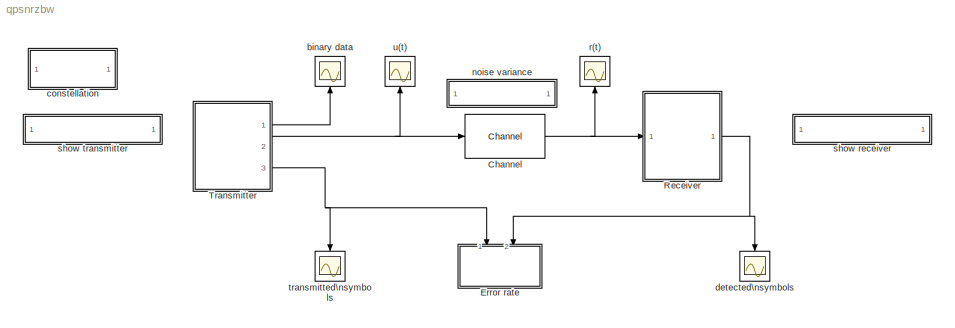
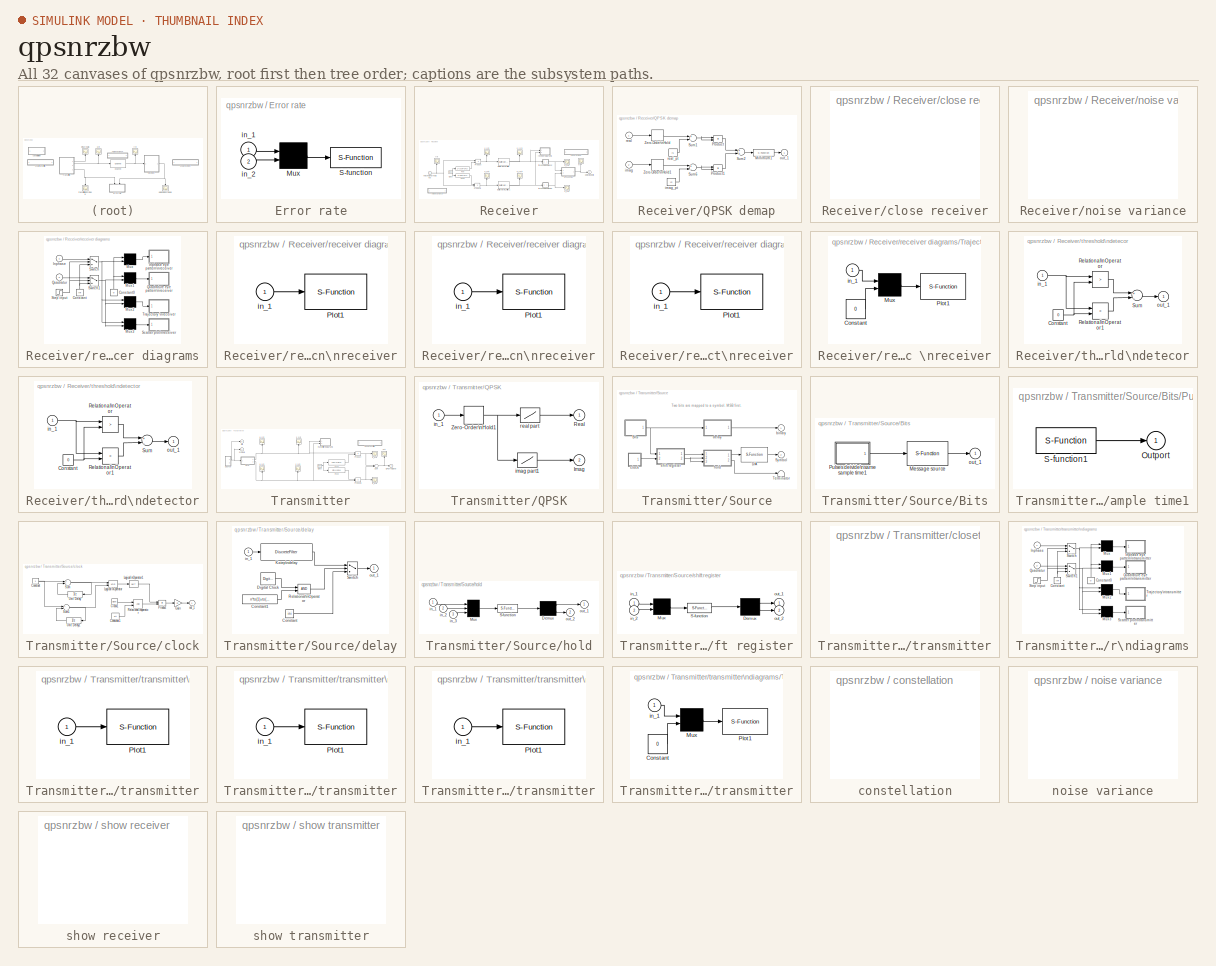
[diagram: thumbnail index - all 32 canvases of the model, root first then tree order]
MODEL qpsnrzbw
KIND model
CONFIG AbsTol = 1e-6
CONFIG FixedStep = auto
CONFIG MaxStep = .050
CONFIG MinStep = 0.00001
CONFIG RelTol = 1e-6
CONFIG Solver = ode45
CONFIG SolverMode = Auto
CONFIG StartTime = 0.0
CONFIG StopTime = 999999
BLOCK [Reference] Channel  REF=librnew/Channel  (lib defined in mdl_aba7bc8d2a37)
  Ports = [1, 1]
  SourceBlock = librnew/Channel
  SourceType = AWGN channel, fixed parameter
  m = 0
  s = 12345
  variance = 0.033113
BLOCK [SubSystem] Error rate
  CopyFcn = sbiterr([],[],[],'CopyBlock')
  DeleteFcn = sbiterr([],[],[],'DeleteBlock')
  LoadFcn = sbiterr([],[],[],'LoadBlock')
  MaskCallbackString = |||
  MaskDescription = Use the input data from the 1st port as the reference signal to detect the number of errors and error rate of the 2nd signal.
  MaskDisplay = disp('Error\\nmeter')
  MaskEnableString = on,on,on,on
  MaskHelp = The signal from the first port must be a scalar. The second input port can be a vector with a delay to the first port signal. The comparison happens only at the sampling point.
  MaskIconFrame = on
  MaskIconOpaque = on
  MaskIconRotate = none
  MaskIconUnits = autoscale
  MaskInitialization = K=@1;num_lin=@2;TDelay=@3;Sample=@4;
  MaskPromptString = Bit per symbol:|Number of digits on display:|Delay between 1st port and 2nd port:|Sample time (sec):
  MaskStyleString = edit,edit,edit,edit
  MaskToolTipString = on,on,on,on
  MaskTunableValueString = on,on,on,on
  MaskType = Symbol/bit error counter
  MaskValueString = 2|10|1|1
  MaskVarAliasString = ,,,
  MaskVisibilityString = on,on,on,on
  NameChangeFcn = sbiterr([],[],[],'NameChange')
  Ports = [2]
  ShowPortLabels = off
  StartFcn = sbiterr([],[],[],'Start')
  StopFcn = sbiterr([],[],[],'Stop')
  TreatAsAtomicUnit = off
BLOCK [Mux] Error rate/Mux
  Inputs = 2
  Ports = [2, 1]
BLOCK [S-Function] Error rate/S-function
  FunctionName = sbiterr
  Parameters = num_lin, K, TDelay, Sample
  Ports = [1]
BLOCK [Inport] Error rate/in_1
BLOCK [Inport] Error rate/in_2
  Port = 2
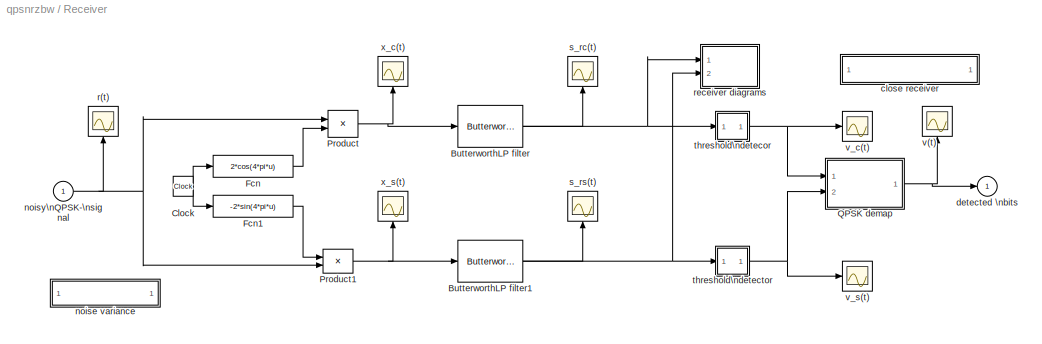
BLOCK [SubSystem] Receiver
  Ports = [1, 1]
  ShowPortLabels = off
  TreatAsAtomicUnit = off
BLOCK [Reference] Receiver/ButterworthLP filter  REF=librnew/ButterworthLP filter  (lib defined in mdl_aba7bc8d2a37)
  MaskParam1 = 5
  Ports = [1, 1]
  SourceBlock = librnew/ButterworthLP filter
  SourceType = Lowpass Butterworth filter
  n = 4
BLOCK [Reference] Receiver/ButterworthLP filter1  REF=librnew/ButterworthLP filter  (lib defined in mdl_aba7bc8d2a37)
  MaskParam1 = 5
  Ports = [1, 1]
  SourceBlock = librnew/ButterworthLP filter
  SourceType = Lowpass Butterworth filter
  n = 4
BLOCK [Clock] Receiver/Clock
  Decimation = 10
BLOCK [Fcn] Receiver/Fcn
  Expr = 2*cos(4*pi*u)
BLOCK [Fcn] Receiver/Fcn1
  Expr = -2*sin(4*pi*u)
BLOCK [Product] Receiver/Product
  Ports = [2, 1]
BLOCK [Product] Receiver/Product1
  Ports = [2, 1]
BLOCK [SubSystem] Receiver/QPSK demap
  MaskCallbackString = |||
  MaskDescription = Reverse the QASK map. Input in-phase\nand quadrature components from the\ntwo inputs. Output demapped signal.
  MaskDisplay = disp('MPSK\\ndemapping')
  MaskEnableString = on,on,on,on
  MaskHelp = This block demaps a QASK mapped signal using circle constellation. You can place this block after a QAM demodulation block. The circle constellation is defined in NIC, RIC, and PIC. The symbol interval can be a two elements vector with the first element being offset. The default offset is zero. Use function MODMAP to view the constellation.
  MaskIconFrame = on
  MaskIconOpaque = on
  MaskIconRotate = none
  MaskIconUnits = autoscale
  MaskInitialization = y1=apkconst(N,A,P);y2=imag(y1);y1=real(y1);
  MaskPromptString = Number of symbols on each circle NIC::|Radii for each circle RIC:|Phase shift on each circle PIC (rad):|Symbol interval and offset (sec):
  MaskStyleString = edit,edit,edit,edit
  MaskToolTipString = on,on,on,on
  MaskTunableValueString = on,on,on,on
  MaskType = MPSK demapping
  MaskValueString = [4]|[sqrt(2)]|[pi/4]|1
  MaskVarAliasString = ,,,
  MaskVariables = N=@1;A=@2;P=@3;td=@4;
  MaskVisibilityString = on,on,on,on
  Ports = [2, 1]
  TreatAsAtomicUnit = off
BLOCK [S-Function] Receiver/QPSK demap/Minimum1
  FunctionName = arymimai
  Parameters = 'min'
  Ports = [1, 1]
BLOCK [Product] Receiver/QPSK demap/Product
  Ports = [2, 1]
BLOCK [Product] Receiver/QPSK demap/Product1
  Ports = [2, 1]
BLOCK [Sum] Receiver/QPSK demap/Sum1
  Inputs = +-
  Ports = [2, 1]
BLOCK [Sum] Receiver/QPSK demap/Sum2
  Ports = [2, 1]
BLOCK [Sum] Receiver/QPSK demap/Sum6
  Inputs = +-
  Ports = [2, 1]
BLOCK [ZeroOrderHold] Receiver/QPSK demap/Zero-Order\nHold
  SampleTime = td
BLOCK [ZeroOrderHold] Receiver/QPSK demap/Zero-Order\nHold1
  SampleTime = td
BLOCK [Inport] Receiver/QPSK demap/imag
  Port = 2
BLOCK [Constant] Receiver/QPSK demap/imag_pt
  Value = y2
BLOCK [Outport] Receiver/QPSK demap/out_1
BLOCK [Inport] Receiver/QPSK demap/real
BLOCK [Constant] Receiver/QPSK demap/real_pt
  Value = y1
BLOCK [SubSystem] Receiver/close receiver
  MaskDisplay = disp('close receiver')
  MaskIconFrame = on
  MaskIconOpaque = on
  MaskIconRotate = none
  MaskIconUnits = autoscale
  MaskType = close
  OpenFcn = closerec
  Ports = []
  ShowPortLabels = off
  TreatAsAtomicUnit = off
BLOCK [Outport] Receiver/detected \nbits
BLOCK [SubSystem] Receiver/noise variance
  MaskDisplay = disp('Noise variance')
  MaskIconFrame = on
  MaskIconOpaque = on
  MaskIconRotate = none
  MaskIconUnits = autoscale
  MaskType = noise
  OpenFcn = setnoise
  Ports = []
  ShowPortLabels = off
  TreatAsAtomicUnit = off
BLOCK [Inport] Receiver/noisy\nQPSK-\nsignal
BLOCK [Scope] Receiver/r(t)
  DataFormat = Array
  NumInputPorts = 1
  Ports = [1]
  TimeRange = 25.000000
  YMax = 1.5
  YMin = -1.5
BLOCK [SubSystem] Receiver/receiver diagrams
  MaskCallbackString = ||
  MaskDescription = Eye pattern, signal space trajectory and scatter plot
  MaskDisplay = plot(0,0,100,100,x,y)
  MaskEnableString = on,on,on
  MaskIconFrame = on
  MaskIconOpaque = on
  MaskIconRotate = none
  MaskIconUnits = autoscale
  MaskInitialization = [x, y] = srcsicon(10);
  MaskPromptString = Plot start time:|Samples per time slot (2*T):|Decision offset:
  MaskStyleString = edit,edit,edit
  MaskToolTipString = on,on,on
  MaskTunableValueString = on,on,on
  MaskType = 2D-Diagrams
  MaskValueString = 1|40|0.075
  MaskVarAliasString = ,,
  MaskVariables = starttime=@1;anzahl=@2;offset=@3;
  MaskVisibilityString = on,on,on
  Ports = [2]
  ShowPortLabels = off
  TreatAsAtomicUnit = off
BLOCK [Constant] Receiver/receiver diagrams/Constant
  Value = Inf
BLOCK [Constant] Receiver/receiver diagrams/Constant0
  Value = 0
BLOCK [Inport] Receiver/receiver diagrams/Inphase
BLOCK [SubSystem] Receiver/receiver diagrams/Inphase eye pattern\nreceiver
  CopyFcn = eyesampl([],[],[],'CopyBlock')
  DeleteFcn = eyesampl([],[],[],'DeleteBlock')
  LoadFcn = eyesampl([],[],[],'LoadBlock')
  MaskCallbackString = |||||
  MaskDescription = Produce eye-pattern diagram and/or scatter plot.
  MaskDisplay = plot(0,0,100,100,x,y);
  MaskEnableString = on,on,on,on,on,on
  MaskHelp = This plot opens one, or two plots by assigning the line type parameters. The scatter plot point is selected by the decision point in the first parameter entry. A decision line is drawn in the eye-pattern diagram. The plot is updated at the plot update sample time point.  <repeated x6 — deduplicated; at blocks: Inphase eye pattern\nreceiver, Quadrature eye pattern\nreceiver, Scatter plot\nreceiver, Inphase eye pattern\ntransmitter, Quadrature eye pattern\ntransmitter, Scatter plot\ntransmitter>
  MaskIconFrame = on
  MaskIconOpaque = on
  MaskIconRotate = none
  MaskIconUnits = autoscale
  MaskInitialization = time_range=@1;boundary=@2;kept_length=@3;eye_line=@4;scatter_line=@5;two_d_line=@6;[x,y]=srcsicon(10);
  MaskPromptString = [Symbol interval, plot offset, decision point offset]:|Lower and upper bound of in-coming signal (1x2 vector):|Number of saved traces:|Line-type for eye-pattern diagram (0 for no plot):|Line-type for scatter plot (0 for no plot):|Plot update sample time:  <repeated x6 — deduplicated; at blocks: Inphase eye pattern\nreceiver, Quadrature eye pattern\nreceiver, Scatter plot\nreceiver, Inphase eye pattern\ntransmitter, Quadrature eye pattern\ntransmitter, Scatter plot\ntransmitter>
  MaskStyleString = edit,edit,edit,edit,edit,edit
  MaskToolTipString = on,on,on,on,on,on
  MaskTunableValueString = on,on,on,on,on,on
  MaskType = Eye-diagram/scatter plot
  MaskValueString = [2 0 1+offset]|[-1.5 1.5]|0|'w-/r-'|0|2/anzahl
  MaskVarAliasString = ,,,,,
  MaskVisibilityString = on,on,on,on,on,on
  NameChangeFcn = eyesampl([],[],[],'NameChange')
  Ports = [1]
  ShowPortLabels = off
  StartFcn = eyesampl([],[],[],'Start')
  StopFcn = eyesampl([],[],[],'Stop')
  TreatAsAtomicUnit = off
BLOCK [S-Function] Receiver/receiver diagrams/Inphase eye pattern\nreceiver/Plot1
  FunctionName = eyesampl
  Parameters = time_range, boundary, kept_length, eye_line, scatter_line, two_d_line
  Ports = [1]
BLOCK [Inport] Receiver/receiver diagrams/Inphase eye pattern\nreceiver/in_1
BLOCK [Mux] Receiver/receiver diagrams/Mux
  Inputs = 2
  Ports = [2, 1]
BLOCK [Mux] Receiver/receiver diagrams/Mux1
  Inputs = 2
  Ports = [2, 1]
BLOCK [Mux] Receiver/receiver diagrams/Mux2
  Inputs = 2
  Ports = [2, 1]
BLOCK [Mux] Receiver/receiver diagrams/Mux3
  Inputs = 2
  Ports = [2, 1]
BLOCK [Inport] Receiver/receiver diagrams/Quadratur
  Port = 2
BLOCK [SubSystem] Receiver/receiver diagrams/Quadrature eye pattern\nreceiver
  CopyFcn = eyesampl([],[],[],'CopyBlock')
  DeleteFcn = eyesampl([],[],[],'DeleteBlock')
  LoadFcn = eyesampl([],[],[],'LoadBlock')
  MaskCallbackString = |||||
  MaskDescription = Produce eye-pattern diagram and/or scatter plot.
  MaskDisplay = plot(0,0,100,100,x,y);
  MaskEnableString = on,on,on,on,on,on
  MaskIconFrame = on
  MaskIconOpaque = on
  MaskIconRotate = none
  MaskIconUnits = autoscale
  MaskInitialization = time_range=@1;boundary=@2;kept_length=@3;eye_line=@4;scatter_line=@5;two_d_line=@6;[x,y]=srcsicon(10);
  MaskStyleString = edit,edit,edit,edit,edit,edit
  MaskToolTipString = on,on,on,on,on,on
  MaskTunableValueString = on,on,on,on,on,on
  MaskType = Eye-diagram/scatter plot
  MaskValueString = [2 0 1+offset]|[-1.5 1.5]|0|'w-/r-'|0|2/anzahl
  MaskVarAliasString = ,,,,,
  MaskVisibilityString = on,on,on,on,on,on
  NameChangeFcn = eyesampl([],[],[],'NameChange')
  Ports = [1]
  ShowPortLabels = off
  StartFcn = eyesampl([],[],[],'Start')
  StopFcn = eyesampl([],[],[],'Stop')
  TreatAsAtomicUnit = off
BLOCK [S-Function] Receiver/receiver diagrams/Quadrature eye pattern\nreceiver/Plot1
  FunctionName = eyesampl
  Parameters = time_range, boundary, kept_length, eye_line, scatter_line, two_d_line
  Ports = [1]
BLOCK [Inport] Receiver/receiver diagrams/Quadrature eye pattern\nreceiver/in_1
BLOCK [SubSystem] Receiver/receiver diagrams/Scatter plot\nreceiver
  CopyFcn = eyesampl([],[],[],'CopyBlock')
  DeleteFcn = eyesampl([],[],[],'DeleteBlock')
  LoadFcn = eyesampl([],[],[],'LoadBlock')
  MaskCallbackString = |||||
  MaskDescription = Produce eye-pattern diagram and/or scatter plot.
  MaskDisplay = plot(0,0,100,100,x,y);
  MaskEnableString = on,on,on,on,on,on
  MaskIconFrame = on
  MaskIconOpaque = on
  MaskIconRotate = none
  MaskIconUnits = autoscale
  MaskInitialization = time_range=@1;boundary=@2;kept_length=@3;eye_line=@4;scatter_line=@5;two_d_line=@6;[x,y]=srcsicon(10);
  MaskStyleString = edit,edit,edit,edit,edit,edit
  MaskToolTipString = on,on,on,on,on,on
  MaskTunableValueString = on,on,on,on,on,on
  MaskType = Eye-diagram/scatter plot
  MaskValueString = [1 .5 .999]|[-1.5 1.5]|0|0|'b.'|[.5 offset]
  MaskVarAliasString = ,,,,,
  MaskVisibilityString = on,on,on,on,on,on
  NameChangeFcn = eyesampl([],[],[],'NameChange')
  Ports = [1]
  ShowPortLabels = off
  StartFcn = eyesampl([],[],[],'Start')
  StopFcn = eyesampl([],[],[],'Stop')
  TreatAsAtomicUnit = off
BLOCK [S-Function] Receiver/receiver diagrams/Scatter plot\nreceiver/Plot1
  FunctionName = eyesampl
  Parameters = time_range, boundary, kept_length, eye_line, scatter_line, two_d_line
  Ports = [1]
BLOCK [Inport] Receiver/receiver diagrams/Scatter plot\nreceiver/in_1
BLOCK [Step] Receiver/receiver diagrams/Step input
  SampleTime = 1
  Time = starttime
BLOCK [Switch] Receiver/receiver diagrams/Switch
  Threshold = 1
BLOCK [Switch] Receiver/receiver diagrams/Switch1
  Threshold = 1
BLOCK [SubSystem] Receiver/receiver diagrams/Trajectory \nreceiver
  CopyFcn = eyediasi([],[],[],'CopyBlock')
  DeleteFcn = eyediasi([],[],[],'DeleteBlock')
  LoadFcn = eyediasi([],[],[],'LoadBlock')
  MaskCallbackString = |||||
  MaskDescription = Produce eye-pattern diagram/scatter\nplot/x-y plot with the rising edge of the second input as the decision line.
  MaskDisplay = plot(0,0,100,100,x,y,v,w);
  MaskEnableString = on,on,on,on,on,on
  MaskHelp = This plot opens one, two, or three plots by assigning the line type parameters. The scatter plot point is selected by the rising edge of a trigger signal. A decision line is drawn at the rising edge of the trigger signal.
  MaskIconFrame = on
  MaskIconOpaque = on
  MaskIconRotate = none
  MaskIconUnits = autoscale
  MaskInitialization = time_range=@1;boundary=@2;kept_length=@3;eye_line=@4;scatter_line=@5;two_d_line=@6;[x,y]=srcsicon(10);[v,w]=trigicon(0,25,get_param(gcb,'orientation'),2);
  MaskPromptString = Eye-pattern plot time frame:|Lower and upper bound of in-coming signal (1x2 vector):|Number of saved traces:|Line-type for eye-pattern diagram (0 for no plot):|Line-type for scatter plot (0 for no plot):|Line-type for x-y plot (0 for no plot):
  MaskStyleString = edit,edit,edit,edit,edit,edit
  MaskToolTipString = on,on,on,on,on,on
  MaskTunableValueString = on,on,on,on,on,on
  MaskType = Eye-diagram/scatter plot
  MaskValueString = [2 0 1]|[-1.5 1.5]|0|0|0|'g-'
  MaskVarAliasString = ,,,,,
  MaskVisibilityString = on,on,on,on,on,on
  NameChangeFcn = eyediasi([],[],[],'NameChange')
  Ports = [1]
  ShowPortLabels = off
  StartFcn = eyediasi([],[],[],'Start')
  StopFcn = eyediasi([],[],[],'Stop')
  TreatAsAtomicUnit = off
BLOCK [Constant] Receiver/receiver diagrams/Trajectory \nreceiver/Constant
  Value = 0
BLOCK [Mux] Receiver/receiver diagrams/Trajectory \nreceiver/Mux
  Inputs = 2
  Ports = [2, 1]
BLOCK [S-Function] Receiver/receiver diagrams/Trajectory \nreceiver/Plot1
  FunctionName = eyediasi
  Parameters = time_range, boundary, kept_length, eye_line, scatter_line, two_d_line
  Ports = [1]
BLOCK [Inport] Receiver/receiver diagrams/Trajectory \nreceiver/in_1
BLOCK [Scope] Receiver/s_rc(t)
  DataFormat = Array
  NumInputPorts = 1
  Ports = [1]
  TimeRange = 25.000000
  YMax = 1.5
  YMin = -1.5
BLOCK [Scope] Receiver/s_rs(t)
  DataFormat = Array
  NumInputPorts = 1
  Ports = [1]
  TimeRange = 25.000000
  YMax = 1.5
  YMin = -1.5
BLOCK [SubSystem] Receiver/threshold\ndetecor
  MaskDescription = y = sign(x)
  MaskDisplay = plot(-50,-50,50,50,[-50,50],[0,0],[0,0],[-50,50],[-40,0],[-30,-30],[0,40],[30,30])
  MaskHelp = Sign Function:<path> = 1 if x > 0<path> = 0 if x = 0<path> = -1 if x < 0
  MaskIconFrame = on
  MaskIconOpaque = on
  MaskIconRotate = none
  MaskIconUnits = autoscale
  MaskType = Sign
  Ports = [1, 1]
  ShowPortLabels = off
  TreatAsAtomicUnit = off
BLOCK [Constant] Receiver/threshold\ndetecor/Constant
  Value = 0
BLOCK [RelationalOperator] Receiver/threshold\ndetecor/Relational\nOperator
  Operator = >
BLOCK [RelationalOperator] Receiver/threshold\ndetecor/Relational\nOperator1
  Operator = <
BLOCK [Sum] Receiver/threshold\ndetecor/Sum
  Inputs = +-
  Ports = [2, 1]
BLOCK [Inport] Receiver/threshold\ndetecor/in_1
BLOCK [Outport] Receiver/threshold\ndetecor/out_1
BLOCK [SubSystem] Receiver/threshold\ndetector
  MaskDescription = y = sign(x)
  MaskDisplay = plot(-50,-50,50,50,[-50,50],[0,0],[0,0],[-50,50],[-40,0],[-30,-30],[0,40],[30,30])
  MaskHelp = Sign Function:<path> = 1 if x > 0<path> = 0 if x = 0<path> = -1 if x < 0
  MaskIconFrame = on
  MaskIconOpaque = on
  MaskIconRotate = none
  MaskIconUnits = autoscale
  MaskType = Sign
  Ports = [1, 1]
  ShowPortLabels = off
  TreatAsAtomicUnit = off
BLOCK [Constant] Receiver/threshold\ndetector/Constant
  Value = 0
BLOCK [RelationalOperator] Receiver/threshold\ndetector/Relational\nOperator
  Operator = >
BLOCK [RelationalOperator] Receiver/threshold\ndetector/Relational\nOperator1
  Operator = <
BLOCK [Sum] Receiver/threshold\ndetector/Sum
  Inputs = +-
  Ports = [2, 1]
BLOCK [Inport] Receiver/threshold\ndetector/in_1
BLOCK [Outport] Receiver/threshold\ndetector/out_1
BLOCK [Scope] Receiver/v(t)
  DataFormat = Array
  NumInputPorts = 1
  Ports = [1]
  TimeRange = 25.000000
  YMax = 3.000000
  YMin = -3.000000
BLOCK [Scope] Receiver/v_c(t)
  DataFormat = Array
  NumInputPorts = 1
  Ports = [1]
  TimeRange = 25.000000
  YMax = 1.5
  YMin = -1.5
BLOCK [Scope] Receiver/v_s(t)
  DataFormat = Array
  NumInputPorts = 1
  Ports = [1]
  TimeRange = 25.000000
  YMax = 1.5
  YMin = -1.5
BLOCK [Scope] Receiver/x_c(t)
  DataFormat = Array
  NumInputPorts = 1
  Ports = [1]
  TimeRange = 25.000000
  YMax = 1.5
  YMin = -1.5
BLOCK [Scope] Receiver/x_s(t)
  DataFormat = Array
  NumInputPorts = 1
  Ports = [1]
  TimeRange = 25.000000
  YMax = 1.5
  YMin = -1.5
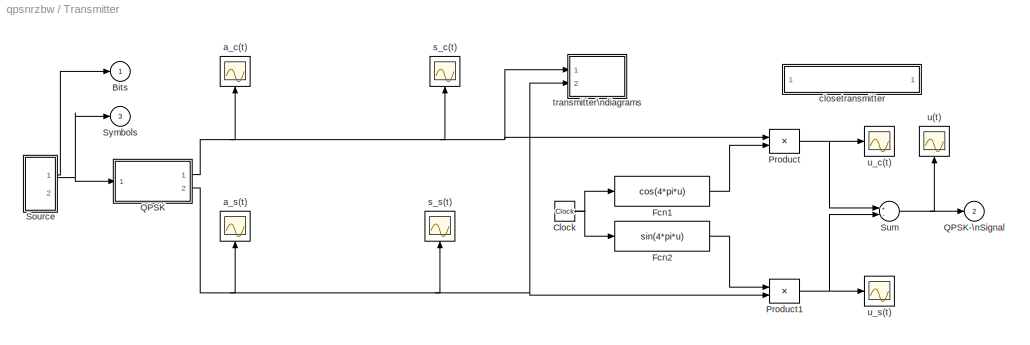
BLOCK [SubSystem] Transmitter
  Ports = [0, 3]
  ShowPortLabels = off
  TreatAsAtomicUnit = off
BLOCK [Outport] Transmitter/Bits
BLOCK [Clock] Transmitter/Clock
  Decimation = 10
BLOCK [Fcn] Transmitter/Fcn1
  Expr = cos(4*pi*u)
BLOCK [Fcn] Transmitter/Fcn2
  Expr = sin(4*pi*u)
BLOCK [Product] Transmitter/Product
  Ports = [2, 1]
BLOCK [Product] Transmitter/Product1
  Ports = [2, 1]
BLOCK [SubSystem] Transmitter/QPSK
  MaskCallbackString = |||
  MaskDescription = QASK mapping with circle constellation. The constellation is defined in NIC, RIC and PIC.
  MaskDisplay = disp('MPSK\\nmapping')
  MaskEnableString = on,on,on,on
  MaskHelp = This block maps a digital signal onto in-phase and quadratic components, which are outputs in the first and second output port respectively. The circle constellation is defined in NIC, RIC, and PIC. The input symbol interval can be a two-element vector with the second element being offset. The default value offset is 0. Use the MODMAP function to see the constellation.
  MaskIconFrame = on
  MaskIconOpaque = on
  MaskIconRotate = none
  MaskIconUnits = autoscale
  MaskInitialization = y1=apkconst(N,A,P);y1=[y1;y1];y1=y1(:);y2=imag(y1);y1=real(y1);x=[-sum(N) 1:sum(N)-1;1:sum(N)-1 10*sum(N)]-.5;x=x(:);
  MaskPromptString = Number of symbols in each circle NIC:|Radii in each circle RIC:|Phase shift in each circle PIC (rad):|Symbol interval and offset (sec):
  MaskStyleString = edit,edit,edit,edit
  MaskToolTipString = on,on,on,on
  MaskTunableValueString = on,on,on,on
  MaskType = MPSK
  MaskValueString = [4]|[sqrt(2)]|[pi/4]|1
  MaskVarAliasString = ,,,
  MaskVariables = N=@1;A=@2;P=@3;td=@4;
  MaskVisibilityString = on,on,on,on
  Ports = [1, 2]
  TreatAsAtomicUnit = off
BLOCK [Outport] Transmitter/QPSK-\nSignal
  Port = 2
BLOCK [Outport] Transmitter/QPSK/Imag
  Port = 2
BLOCK [Outport] Transmitter/QPSK/Real
BLOCK [ZeroOrderHold] Transmitter/QPSK/Zero-Order\nHold1
  SampleTime = td
BLOCK [Lookup] Transmitter/QPSK/imag part1
  InputValues = x
  OutputValues = y2
BLOCK [Inport] Transmitter/QPSK/in_1
BLOCK [Lookup] Transmitter/QPSK/real part
  InputValues = x
  OutputValues = y1
BLOCK [SubSystem] Transmitter/Source
  Ports = [0, 2]
  ShowPortLabels = off
  TreatAsAtomicUnit = off
BLOCK [SubSystem] Transmitter/Source/Bits
  MaskCallbackString = |||
  MaskDescription = Read from a workspace variable at\nsampling time point.
  MaskDisplay = plot(0,0,100,100,x,y);disp('Rd wksp')
  MaskEnableString = on,on,on,on
  MaskHelp = This block reads from a workspace variable at a given sample time. The column number is the block output vector length. When the simulation reaches the end of the variable (eof), the block will cyclically output from the first row of the variable or output zeros based on the repeat flag entree.
  MaskIconFrame = on
  MaskIconOpaque = on
  MaskIconRotate = none
  MaskIconUnits = autoscale
  MaskInitialization = var=@1;td=@2;ts=td(1);if (length(td)>=2),off=td(2);else off=0;end;cyc=@3;ini=@4;[x,y]=srcsicon(7);
  MaskPromptString = Variable (column_number=block_output_length):|Data output sample time (sec):|Repeat flag (1: repeat read, 0: output zeros after eof).|Initial output:
  MaskStyleString = edit,edit,edit,edit
  MaskToolTipString = on,on,on,on
  MaskTunableValueString = on,on,on,on
  MaskType = Read from workspace
  MaskValueString = randint(2000,1,2)|.5|1|1
  MaskVarAliasString = ,,,
  MaskVisibilityString = on,on,on,on
  Ports = [0, 1]
  ShowPortLabels = off
  TreatAsAtomicUnit = off
BLOCK [S-Function] Transmitter/Source/Bits/Message source
  FunctionName = trigwksp
  MaskCallbackString = |||
  MaskDescription = The raising edge of input pulse trigger the block output the next row from the workspace variable.
  MaskDisplay = disp('Triggered\\nread')
  MaskEnableString = on,on,on,on
  MaskHelp = This block reads the data from a workspace variable. The output is refreshed at the raising edge of the input pulse.
  MaskIconFrame = on
  MaskIconOpaque = on
  MaskIconRotate = none
  MaskIconUnits = autoscale
  MaskInitialization = var=@1;thd=@2;cyclFlag=@3;ini=@4;
  MaskPromptString = Read the variable:|Threshold for the input pulse:|Cyclic read variable (1) or amend zeros (0).|Output before first trigger:
  MaskStyleString = edit,edit,edit,edit
  MaskToolTipString = on,on,on,on
  MaskTunableValueString = on,on,on,on
  MaskType = Read from workspace
  MaskValueString = var|.1|cyc|ini
  MaskVarAliasString = ,,,
  MaskVisibilityString = on,on,on,on
  Parameters = var,thd,cyclFlag,ini
  Ports = [1, 1]
BLOCK [SubSystem] Transmitter/Source/Bits/Pulses deivide\nsame sample time1
  MaskCallbackString = ||
  MaskDescription = Vector pulses with sample rate of each pulse as Sample_time ./Divider.
  MaskDisplay = disp('Vector\\nPulse')
  MaskEnableString = on,on,on
  MaskHelp = This block generator a vector pulses. The output length is the same as the vector defined in \"Divider\". The ith element of the output has the sample time Sample_time/Divider(i). All elements in \"Divider\" must be integers.
  MaskIconFrame = on
  MaskIconOpaque = on
  MaskIconRotate = none
  MaskIconUnits = autoscale
  MaskInitialization = samp_time=@1;out_divid=@2;offset=@3;
  MaskPromptString = Sample time (scalar, sec):|Divider (integer vector):|Offset (have same dimension as Divider:
  MaskStyleString = edit,edit,edit
  MaskToolTipString = on,on,on
  MaskTunableValueString = on,on,on
  MaskType = Pulse generator
  MaskValueString = ts|1|off
  MaskVarAliasString = ,,
  MaskVisibilityString = on,on,on
  Ports = [0, 1]
  ShowPortLabels = off
  TreatAsAtomicUnit = off
BLOCK [Outport] Transmitter/Source/Bits/Pulses deivide\nsame sample time1/Outport
BLOCK [S-Function] Transmitter/Source/Bits/Pulses deivide\nsame sample time1/S-function1
  FunctionName = homopuls
  Parameters = samp_time, out_divid, offset
  Ports = [0, 1]
BLOCK [Outport] Transmitter/Source/Bits/out_1
BLOCK [S-Function] Transmitter/Source/D//A 
  FunctionName = simbi2de
  MaskDescription = Convert base M integer with each\nposition in the input vector into scalar decimal output.
  MaskDisplay = disp('Vec to sca\\nconverter')
  MaskEnableString = on
  MaskHelp = This block convert the base M vector into scalar decimal integer output. Each element of the input vector is one position of the digit of the base M integer. The 1st element in the input vector contains the 1's position. The 2nd element in the input vector contains the M's position.
  MaskIconFrame = on
  MaskIconOpaque = on
  MaskIconRotate = none
  MaskIconUnits = autoscale
  MaskInitialization = p=@1;
  MaskPromptString = Input integer base M:
  MaskStyleString = edit
  MaskToolTipString = on
  MaskTunableValueString = on
  MaskType = Base M vector to decimal integer
  MaskValueString = 2
  MaskVisibilityString = on
  Parameters = p
  Ports = [1, 1]
BLOCK [Outport] Transmitter/Source/Symbol
  Port = 2
BLOCK [Terminator] Transmitter/Source/Terminator
BLOCK [Outport] Transmitter/Source/binary
BLOCK [SubSystem] Transmitter/Source/clock
  MaskCallbackString = |||
  MaskDescription = Pulse Generator.
  MaskDisplay = plot(0,0,100,100,[90,75,75,60,60,35,35,20,20,10],[20,20,80,80,20,20,80,80,20,20])
  MaskEnableString = on,on,on,on
  MaskHelp = Pulse generator which ensures pulse\\ntransitions are hit. Provides a vector of pulses when the height is entered as a vector.\\nUnmask to see how it works.
  MaskIconFrame = on
  MaskIconOpaque = on
  MaskIconRotate = none
  MaskIconUnits = autoscale
  MaskInitialization = Ts=@1; du=@2; ht=@3; stt=@4; ini=ones(length(ht),1); st1=rem(stt,Ts); st2=rem(stt+du,Ts);if(Ts<=1.2*du),ini=zeros(length(ht),1);end;
  MaskPromptString = Pulse period (secs):|Pulse width:|Pulse height:|Pulse start time:
  MaskStyleString = edit,edit,edit,edit
  MaskToolTipString = on,on,on,on
  MaskTunableValueString = on,on,on,on
  MaskType = Pulse Generator
  MaskValueString = .5|.25|1|0
  MaskVarAliasString = ,,,
  MaskVisibilityString = on,on,on,on
  Ports = [0, 1]
  ShowPortLabels = off
  TreatAsAtomicUnit = off
BLOCK [Clock] Transmitter/Source/clock/Clock1
  Decimation = 10
BLOCK [Constant] Transmitter/Source/clock/Constant
BLOCK [Constant] Transmitter/Source/clock/Constant1
  Value = stt
BLOCK [Gain] Transmitter/Source/clock/Gain
  Gain = ht
BLOCK [Logic] Transmitter/Source/clock/Logical\nOperator
  Operator = XOR
  Ports = [2, 1]
BLOCK [Logic] Transmitter/Source/clock/Logical\nOperator1
  Inputs = 1
  Operator = NOT
  Ports = [1, 1]
BLOCK [Product] Transmitter/Source/clock/Product
  Ports = [2, 1]
BLOCK [RelationalOperator] Transmitter/Source/clock/Relational\noperator
BLOCK [Sum] Transmitter/Source/clock/Sum
  Inputs = +-
  Ports = [2, 1]
BLOCK [Sum] Transmitter/Source/clock/Sum1
  Inputs = +-
  Ports = [2, 1]
BLOCK [UnitDelay] Transmitter/Source/clock/Unit Delay
  SampleTime = [Ts,st1]
BLOCK [UnitDelay] Transmitter/Source/clock/Unit Delay1
  SampleTime = [Ts,st2]
  X0 = ini
BLOCK [Outport] Transmitter/Source/clock/out_1
BLOCK [SubSystem] Transmitter/Source/delay
  MaskCallbackString = ||
  MaskDescription = Output is K-step delay of the input signal.
  MaskDisplay = disp('-k\\nz   ')
  MaskEnableString = on,on,on
  MaskHelp = This block holds the input signal for K steps and then outputs the signal. The delay step cannot be changed during the simulation.
  MaskIconFrame = on
  MaskIconOpaque = on
  MaskIconRotate = none
  MaskIconUnits = autoscale
  MaskInitialization = n=@1;ts=@2;if length(ts)<2, ts=[ts 0];end;ini=@3;
  MaskPromptString = Delay steps (integer):|Sample time (sec):|Initial output:
  MaskStyleString = edit,edit,edit
  MaskToolTipString = on,on,on
  MaskTunableValueString = on,on,on
  MaskType = Multi-step delay
  MaskValueString = 2|.5|0
  MaskVarAliasString = ,,
  MaskVisibilityString = on,on,on
  Ports = [1, 1]
  ShowPortLabels = off
  TreatAsAtomicUnit = off
BLOCK [Constant] Transmitter/Source/delay/Constant
  Value = ini
BLOCK [Constant] Transmitter/Source/delay/Constant1
  Value = n*ts(1)+ts(2)
BLOCK [DigitalClock] Transmitter/Source/delay/Digital Clock
  SampleTime = ts
BLOCK [DiscreteFilter] Transmitter/Source/delay/K-step\ndelay
  Denominator = 1
  Numerator = [zeros(1,n), 1]
  SampleTime = ts
BLOCK [RelationalOperator] Transmitter/Source/delay/Relational\nOperator
BLOCK [Switch] Transmitter/Source/delay/Switch
  Threshold = .1
BLOCK [Inport] Transmitter/Source/delay/in_1
BLOCK [Outport] Transmitter/Source/delay/out_1
BLOCK [SubSystem] Transmitter/Source/hold
  MaskCallbackString = ||||
  MaskDescription = Rising edge of the 2nd port triggers 1st port vector signal in. Rising edge of the 3rd port triggers 1st outport signal out.
  MaskDisplay = plot(0,0,100,100,x,y,v,w,u,z);disp('Buffer dwn')
  MaskEnableString = on,on,on,on,on
  MaskHelp = The block refreshes its registers with the vector input from the 1st inport at the rising edge of the 2nd inport pulse. The 1st outport outputs the elements of the registers starting with the given initial index. The rising edge of the 3rd inport pulse triggers the 1st output to output the register value with the index increasing the increment value. The second outport outputs a spike pulse when t...<+34ch>
  MaskIconFrame = on
  MaskIconOpaque = on
  MaskIconRotate = none
  MaskIconUnits = autoscale
  MaskInitialization = in_size=@1;ini_idx=@2;idx_inc=@3;thrshld=@4;cycl_flag=@5;out_size=length(ini_idx);[v,w]=trigicon(0,25,get_param(gcb,'orientation'),2);[x,y]=trigicon(1,75,get_param(gcb,'orientation'),2);[u,z]=trigicon(0,50,get_param(gcb,'orientation'),2);
  MaskPromptString = Input signal vector size:|Initial index (integer vector):|Increment for each index (integer vector):|Trigger threshold:|When index exceed register size, 1: cyclic out, 0: zero out:
  MaskStyleString = edit,edit,edit,edit,edit
  MaskToolTipString = on,on,on,on,on
  MaskTunableValueString = on,on,on,on,on
  MaskType = Triggered buffer down
  MaskValueString = 2|[1 0]|[0 0]|1|0
  MaskVarAliasString = ,,,,
  MaskVisibilityString = on,on,on,on,on
  Ports = [3, 2]
  ShowPortLabels = off
  TreatAsAtomicUnit = off
BLOCK [Demux] Transmitter/Source/hold/Demux
  Outputs = [out_size 1]
  Ports = [1, 2]
BLOCK [Mux] Transmitter/Source/hold/Mux
  Inputs = [in_size 1 1]
  Ports = [3, 1]
BLOCK [S-Function] Transmitter/Source/hold/S-function
  FunctionName = regdown
  Parameters = ini_idx, idx_inc, thrshld, cycl_flag
  Ports = [1, 1]
BLOCK [Inport] Transmitter/Source/hold/in_1
BLOCK [Inport] Transmitter/Source/hold/in_2
  Port = 2
BLOCK [Inport] Transmitter/Source/hold/in_3
  Port = 3
BLOCK [Outport] Transmitter/Source/hold/out_1
BLOCK [Outport] Transmitter/Source/hold/out_2
  Port = 2
BLOCK [SubSystem] Transmitter/Source/shift register
  MaskCallbackString = |
  MaskDescription = The rising edge of the 2nd port pulse\ntriggers the block to input the 1st port data and to shift the register.
  MaskDisplay = plot(0,0,100,100,x,y,v,w);disp('Reg. shift')
  MaskEnableString = on,on
  MaskHelp = This block stores the scalar input signal from the 1st input port at the rising edge of the pulse from the 2nd port. The 1st outport outputs a vector with its size the same as the \"Delay steps\" entree of this block. The maximum delay is the register size of this block. The second outport outputs a positive pulse when the register is\\nrefreshed.
  MaskIconFrame = on
  MaskIconOpaque = on
  MaskIconRotate = none
  MaskIconUnits = autoscale
  MaskInitialization = shft_out=@1;thrhld=@2;len_rg=length(@1);[v,w]=trigicon(0,25,get_param(gcb,'orientation'),2);[x,y]=trigicon(1,75,get_param(gcb,'orientation'),2);
  MaskPromptString = Delay steps (output length is same as this vector size):|Threshold in detecting the rising edge of the pulse:
  MaskStyleString = edit,edit
  MaskToolTipString = on,on
  MaskTunableValueString = on,on
  MaskType = Register-shift
  MaskValueString = [2 1]|1
  MaskVarAliasString = ,
  MaskVisibilityString = on,on
  Ports = [2, 2]
  ShowPortLabels = off
  TreatAsAtomicUnit = off
BLOCK [Demux] Transmitter/Source/shift register/Demux
  Outputs = [len_rg, 1]
  Ports = [1, 2]
BLOCK [Mux] Transmitter/Source/shift register/Mux
  Inputs = 2
  Ports = [2, 1]
BLOCK [S-Function] Transmitter/Source/shift register/S-function
  FunctionName = regshift
  Parameters = shft_out, thrhld
  Ports = [1, 1]
BLOCK [Inport] Transmitter/Source/shift register/in_1
BLOCK [Inport] Transmitter/Source/shift register/in_2
  Port = 2
BLOCK [Outport] Transmitter/Source/shift register/out_1
BLOCK [Outport] Transmitter/Source/shift register/out_2
  Port = 2
BLOCK [Sum] Transmitter/Sum
  Inputs = +-
  Ports = [2, 1]
BLOCK [Outport] Transmitter/Symbols
  Port = 3
BLOCK [Scope] Transmitter/a_c(t)
  DataFormat = Array
  NumInputPorts = 1
  Ports = [1]
  TimeRange = 25.000000
  YMax = 1.5
  YMin = -1.5
BLOCK [Scope] Transmitter/a_s(t)
  DataFormat = Array
  NumInputPorts = 1
  Ports = [1]
  TimeRange = 25.000000
  YMax = 1.5
  YMin = -1.5
BLOCK [SubSystem] Transmitter/closetransmitter
  MaskDisplay = disp('Close transmitter')
  MaskIconFrame = on
  MaskIconOpaque = on
  MaskIconRotate = none
  MaskIconUnits = autoscale
  MaskType = close
  OpenFcn = closetra
  Ports = []
  ShowPortLabels = off
  TreatAsAtomicUnit = off
BLOCK [Scope] Transmitter/s_c(t)
  DataFormat = Array
  NumInputPorts = 1
  Ports = [1]
  TimeRange = 25.000000
  YMax = 1.5
  YMin = -1.5
BLOCK [Scope] Transmitter/s_s(t)
  DataFormat = Array
  NumInputPorts = 1
  Ports = [1]
  TimeRange = 25.000000
  YMax = 1.5
  YMin = -1.5
BLOCK [SubSystem] Transmitter/transmitter\ndiagrams
  MaskCallbackString = ||
  MaskDescription = Eye pattern, signal space trajectory and scatter plot
  MaskDisplay = plot(0,0,100,100,x,y)
  MaskEnableString = on,on,on
  MaskIconFrame = on
  MaskIconOpaque = on
  MaskIconRotate = none
  MaskIconUnits = autoscale
  MaskInitialization = [x, y] = srcsicon(10);
  MaskPromptString = Plot start time:|Samples per time slot (2*T):|Decision offset:
  MaskStyleString = edit,edit,edit
  MaskToolTipString = on,on,on
  MaskTunableValueString = on,on,on
  MaskType = 2D-Diagrams
  MaskValueString = 0|40|0
  MaskVarAliasString = ,,
  MaskVariables = starttime=@1;anzahl=@2;offset=@3;
  MaskVisibilityString = on,on,on
  Ports = [2]
  ShowPortLabels = off
  TreatAsAtomicUnit = off
BLOCK [Constant] Transmitter/transmitter\ndiagrams/Constant
  Value = Inf
BLOCK [Constant] Transmitter/transmitter\ndiagrams/Constant0
  Value = 0
BLOCK [Inport] Transmitter/transmitter\ndiagrams/Inphase
BLOCK [SubSystem] Transmitter/transmitter\ndiagrams/Inphase eye pattern\ntransmitter
  CopyFcn = eyesampl([],[],[],'CopyBlock')
  DeleteFcn = eyesampl([],[],[],'DeleteBlock')
  LoadFcn = eyesampl([],[],[],'LoadBlock')
  MaskCallbackString = |||||
  MaskDescription = Produce eye-pattern diagram and/or scatter plot.
  MaskDisplay = plot(0,0,100,100,x,y);
  MaskEnableString = on,on,on,on,on,on
  MaskIconFrame = on
  MaskIconOpaque = on
  MaskIconRotate = none
  MaskIconUnits = autoscale
  MaskInitialization = time_range=@1;boundary=@2;kept_length=@3;eye_line=@4;scatter_line=@5;two_d_line=@6;[x,y]=srcsicon(10);
  MaskStyleString = edit,edit,edit,edit,edit,edit
  MaskToolTipString = on,on,on,on,on,on
  MaskTunableValueString = on,on,on,on,on,on
  MaskType = Eye-diagram/scatter plot
  MaskValueString = [2 0 1+offset]|[-1.5 1.5]|0|'w-/r-'|0|2/anzahl
  MaskVarAliasString = ,,,,,
  MaskVisibilityString = on,on,on,on,on,on
  NameChangeFcn = eyesampl([],[],[],'NameChange')
  Ports = [1]
  ShowPortLabels = off
  StartFcn = eyesampl([],[],[],'Start')
  StopFcn = eyesampl([],[],[],'Stop')
  TreatAsAtomicUnit = off
BLOCK [S-Function] Transmitter/transmitter\ndiagrams/Inphase eye pattern\ntransmitter/Plot1
  FunctionName = eyesampl
  Parameters = time_range, boundary, kept_length, eye_line, scatter_line, two_d_line
  Ports = [1]
BLOCK [Inport] Transmitter/transmitter\ndiagrams/Inphase eye pattern\ntransmitter/in_1
BLOCK [Mux] Transmitter/transmitter\ndiagrams/Mux
  Inputs = 2
  Ports = [2, 1]
BLOCK [Mux] Transmitter/transmitter\ndiagrams/Mux1
  Inputs = 2
  Ports = [2, 1]
BLOCK [Mux] Transmitter/transmitter\ndiagrams/Mux2
  Inputs = 2
  Ports = [2, 1]
BLOCK [Mux] Transmitter/transmitter\ndiagrams/Mux3
  Inputs = 2
  Ports = [2, 1]
BLOCK [Inport] Transmitter/transmitter\ndiagrams/Quadratur
  Port = 2
BLOCK [SubSystem] Transmitter/transmitter\ndiagrams/Quadrature eye pattern\ntransmitter
  CopyFcn = eyesampl([],[],[],'CopyBlock')
  DeleteFcn = eyesampl([],[],[],'DeleteBlock')
  LoadFcn = eyesampl([],[],[],'LoadBlock')
  MaskCallbackString = |||||
  MaskDescription = Produce eye-pattern diagram and/or scatter plot.
  MaskDisplay = plot(0,0,100,100,x,y);
  MaskEnableString = on,on,on,on,on,on
  MaskIconFrame = on
  MaskIconOpaque = on
  MaskIconRotate = none
  MaskIconUnits = autoscale
  MaskInitialization = time_range=@1;boundary=@2;kept_length=@3;eye_line=@4;scatter_line=@5;two_d_line=@6;[x,y]=srcsicon(10);
  MaskStyleString = edit,edit,edit,edit,edit,edit
  MaskToolTipString = on,on,on,on,on,on
  MaskTunableValueString = on,on,on,on,on,on
  MaskType = Eye-diagram/scatter plot
  MaskValueString = [2 0 1+offset]|[-1.5 1.5]|0|'w-/r-'|0|2/anzahl
  MaskVarAliasString = ,,,,,
  MaskVisibilityString = on,on,on,on,on,on
  NameChangeFcn = eyesampl([],[],[],'NameChange')
  Ports = [1]
  ShowPortLabels = off
  StartFcn = eyesampl([],[],[],'Start')
  StopFcn = eyesampl([],[],[],'Stop')
  TreatAsAtomicUnit = off
BLOCK [S-Function] Transmitter/transmitter\ndiagrams/Quadrature eye pattern\ntransmitter/Plot1
  FunctionName = eyesampl
  Parameters = time_range, boundary, kept_length, eye_line, scatter_line, two_d_line
  Ports = [1]
BLOCK [Inport] Transmitter/transmitter\ndiagrams/Quadrature eye pattern\ntransmitter/in_1
BLOCK [SubSystem] Transmitter/transmitter\ndiagrams/Scatter plot\ntransmitter
  CopyFcn = eyesampl([],[],[],'CopyBlock')
  DeleteFcn = eyesampl([],[],[],'DeleteBlock')
  LoadFcn = eyesampl([],[],[],'LoadBlock')
  MaskCallbackString = |||||
  MaskDescription = Produce eye-pattern diagram and/or scatter plot.
  MaskDisplay = plot(0,0,100,100,x,y);
  MaskEnableString = on,on,on,on,on,on
  MaskIconFrame = on
  MaskIconOpaque = on
  MaskIconRotate = none
  MaskIconUnits = autoscale
  MaskInitialization = time_range=@1;boundary=@2;kept_length=@3;eye_line=@4;scatter_line=@5;two_d_line=@6;[x,y]=srcsicon(10);
  MaskStyleString = edit,edit,edit,edit,edit,edit
  MaskToolTipString = on,on,on,on,on,on
  MaskTunableValueString = on,on,on,on,on,on
  MaskType = Eye-diagram/scatter plot
  MaskValueString = [1 .5 .999]|[-1.5 1.5]|0|0|'b.'|[.5 offset]
  MaskVarAliasString = ,,,,,
  MaskVisibilityString = on,on,on,on,on,on
  NameChangeFcn = eyesampl([],[],[],'NameChange')
  Ports = [1]
  ShowPortLabels = off
  StartFcn = eyesampl([],[],[],'Start')
  StopFcn = eyesampl([],[],[],'Stop')
  TreatAsAtomicUnit = off
BLOCK [S-Function] Transmitter/transmitter\ndiagrams/Scatter plot\ntransmitter/Plot1
  FunctionName = eyesampl
  Parameters = time_range, boundary, kept_length, eye_line, scatter_line, two_d_line
  Ports = [1]
BLOCK [Inport] Transmitter/transmitter\ndiagrams/Scatter plot\ntransmitter/in_1
BLOCK [Step] Transmitter/transmitter\ndiagrams/Step input
  SampleTime = 1
  Time = starttime
BLOCK [Switch] Transmitter/transmitter\ndiagrams/Switch
  Threshold = 1
BLOCK [Switch] Transmitter/transmitter\ndiagrams/Switch1
  Threshold = 1
BLOCK [SubSystem] Transmitter/transmitter\ndiagrams/Trajectory\ntransmitter
  CopyFcn = eyediasi([],[],[],'CopyBlock')
  DeleteFcn = eyediasi([],[],[],'DeleteBlock')
  LoadFcn = eyediasi([],[],[],'LoadBlock')
  MaskCallbackString = |||||
  MaskDescription = Produce eye-pattern diagram/scatter\nplot/x-y plot with the rising edge of the second input as the decision line.
  MaskDisplay = plot(0,0,100,100,x,y,v,w);
  MaskEnableString = on,on,on,on,on,on
  MaskHelp = This plot opens one, two, or three plots by assigning the line type parameters. The scatter plot point is selected by the rising edge of a trigger signal. A decision line is drawn at the rising edge of the trigger signal.
  MaskIconFrame = on
  MaskIconOpaque = on
  MaskIconRotate = none
  MaskIconUnits = autoscale
  MaskInitialization = time_range=@1;boundary=@2;kept_length=@3;eye_line=@4;scatter_line=@5;two_d_line=@6;[x,y]=srcsicon(10);[v,w]=trigicon(0,25,get_param(gcb,'orientation'),2);
  MaskPromptString = Eye-pattern plot time frame:|Lower and upper bound of in-coming signal (1x2 vector):|Number of saved traces:|Line-type for eye-pattern diagram (0 for no plot):|Line-type for scatter plot (0 for no plot):|Line-type for x-y plot (0 for no plot):
  MaskStyleString = edit,edit,edit,edit,edit,edit
  MaskToolTipString = on,on,on,on,on,on
  MaskTunableValueString = on,on,on,on,on,on
  MaskType = Eye-diagram/scatter plot
  MaskValueString = [2 0 1]|[-1.5 1.5]|0|0|0|'g-'
  MaskVarAliasString = ,,,,,
  MaskVisibilityString = on,on,on,on,on,on
  NameChangeFcn = eyediasi([],[],[],'NameChange')
  Ports = [1]
  ShowPortLabels = off
  StartFcn = eyediasi([],[],[],'Start')
  StopFcn = eyediasi([],[],[],'Stop')
  TreatAsAtomicUnit = off
BLOCK [Constant] Transmitter/transmitter\ndiagrams/Trajectory\ntransmitter/Constant
  Value = 0
BLOCK [Mux] Transmitter/transmitter\ndiagrams/Trajectory\ntransmitter/Mux
  Inputs = 2
  Ports = [2, 1]
BLOCK [S-Function] Transmitter/transmitter\ndiagrams/Trajectory\ntransmitter/Plot1
  FunctionName = eyediasi
  Parameters = time_range, boundary, kept_length, eye_line, scatter_line, two_d_line
  Ports = [1]
BLOCK [Inport] Transmitter/transmitter\ndiagrams/Trajectory\ntransmitter/in_1
BLOCK [Scope] Transmitter/u(t)
  DataFormat = Array
  NumInputPorts = 1
  Ports = [1]
  TimeRange = 25.000000
  YMax = 1.5
  YMin = -1.5
BLOCK [Scope] Transmitter/u_c(t)
  DataFormat = Array
  NumInputPorts = 1
  Ports = [1]
  TimeRange = 25.000000
  YMax = 1.5
  YMin = -1.5
BLOCK [Scope] Transmitter/u_s(t)
  DataFormat = Array
  NumInputPorts = 1
  Ports = [1]
  TimeRange = 25.000000
  YMax = 1.5
  YMin = -1.5
BLOCK [Scope] binary data
  DataFormat = Array
  NumInputPorts = 1
  Ports = [1]
  TimeRange = 25.000000
  YMax = 3
  YMin = -3
BLOCK [SubSystem] constellation
  MaskDisplay = disp('Signal Space \\n Constellation')
  MaskIconFrame = on
  MaskIconOpaque = on
  MaskIconRotate = none
  MaskIconUnits = autoscale
  MaskType = constellation
  OpenFcn = cplotpsk(4)
  Ports = []
  ShowPortLabels = off
  TreatAsAtomicUnit = off
BLOCK [Scope] detected\nsymbols
  DataFormat = Array
  NumInputPorts = 1
  Ports = [1]
  TimeRange = 25.000000
  YMax = 3
  YMin = -3
BLOCK [SubSystem] noise variance
  MaskDisplay = disp('Noise variance')
  MaskIconFrame = on
  MaskIconOpaque = on
  MaskIconRotate = none
  MaskIconUnits = autoscale
  MaskType = noise
  OpenFcn = setnoise
  Ports = []
  ShowPortLabels = off
  TreatAsAtomicUnit = off
BLOCK [Scope] r(t)
  DataFormat = Array
  NumInputPorts = 1
  Ports = [1]
  TimeRange = 25.000000
  YMax = 1.5
  YMin = -1.5
BLOCK [SubSystem] show receiver
  MaskDisplay = disp('Receiver')
  MaskIconFrame = on
  MaskIconOpaque = on
  MaskIconRotate = none
  MaskIconUnits = autoscale
  MaskType = open
  OpenFcn = showrec
  Ports = []
  ShowPortLabels = off
  TreatAsAtomicUnit = off
BLOCK [SubSystem] show transmitter
  MaskDisplay = disp('Transmitter')
  MaskIconFrame = on
  MaskIconOpaque = on
  MaskIconRotate = none
  MaskIconUnits = autoscale
  MaskType = open
  OpenFcn = showtra
  Ports = []
  ShowPortLabels = off
  TreatAsAtomicUnit = off
BLOCK [Scope] transmitted\nsymbols
  DataFormat = Array
  NumInputPorts = 1
  Ports = [1]
  TimeRange = 25.000000
  YMax = 3
  YMin = -3
BLOCK [Scope] u(t)
  DataFormat = Array
  NumInputPorts = 1
  Ports = [1]
  TimeRange = 25.000000
  YMax = 1.5
  YMin = -1.5
ANNOTATION Transmitter/Source: Two bits are mapped to a symbol. MSB first.
NET Channel:1 -> Receiver:1, r(t):1
LINE Error rate/Mux:1 -> Error rate/S-function:1
LINE Error rate/in_1:1 -> Error rate/Mux:1
LINE Error rate/in_2:1 -> Error rate/Mux:2
NET Receiver/ButterworthLP filter1:1 -> Receiver/receiver diagrams:2, Receiver/s_rs(t):1, Receiver/threshold\ndetector:1
NET Receiver/ButterworthLP filter:1 -> Receiver/receiver diagrams:1, Receiver/s_rc(t):1, Receiver/threshold\ndetecor:1
NET Receiver/Clock:1 -> Receiver/Fcn1:1, Receiver/Fcn:1
LINE Receiver/Fcn1:1 -> Receiver/Product1:1
LINE Receiver/Fcn:1 -> Receiver/Product:2
NET Receiver/Product1:1 -> Receiver/ButterworthLP filter1:1, Receiver/x_s(t):1
NET Receiver/Product:1 -> Receiver/ButterworthLP filter:1, Receiver/x_c(t):1
LINE Receiver/QPSK demap/Minimum1:1 -> Receiver/QPSK demap/out_1:1
LINE Receiver/QPSK demap/Product1:1 -> Receiver/QPSK demap/Sum2:2
LINE Receiver/QPSK demap/Product:1 -> Receiver/QPSK demap/Sum2:1
NET Receiver/QPSK demap/Sum1:1 -> Receiver/QPSK demap/Product:1, Receiver/QPSK demap/Product:2
LINE Receiver/QPSK demap/Sum2:1 -> Receiver/QPSK demap/Minimum1:1
NET Receiver/QPSK demap/Sum6:1 -> Receiver/QPSK demap/Product1:1, Receiver/QPSK demap/Product1:2
LINE Receiver/QPSK demap/Zero-Order\nHold1:1 -> Receiver/QPSK demap/Sum6:1
LINE Receiver/QPSK demap/Zero-Order\nHold:1 -> Receiver/QPSK demap/Sum1:1
LINE Receiver/QPSK demap/imag:1 -> Receiver/QPSK demap/Zero-Order\nHold1:1
LINE Receiver/QPSK demap/imag_pt:1 -> Receiver/QPSK demap/Sum6:2
LINE Receiver/QPSK demap/real:1 -> Receiver/QPSK demap/Zero-Order\nHold:1
LINE Receiver/QPSK demap/real_pt:1 -> Receiver/QPSK demap/Sum1:2
NET Receiver/QPSK demap:1 -> Receiver/detected \nbits:1, Receiver/v(t):1
NET Receiver/noisy\nQPSK-\nsignal:1 -> Receiver/Product1:2, Receiver/Product:1, Receiver/r(t):1
NET Receiver/receiver diagrams/Constant0:1 -> Receiver/receiver diagrams/Mux1:1, Receiver/receiver diagrams/Mux:1
NET Receiver/receiver diagrams/Constant:1 -> Receiver/receiver diagrams/Switch1:3, Receiver/receiver diagrams/Switch:3
LINE Receiver/receiver diagrams/Inphase eye pattern\nreceiver/in_1:1 -> Receiver/receiver diagrams/Inphase eye pattern\nreceiver/Plot1:1
LINE Receiver/receiver diagrams/Inphase:1 -> Receiver/receiver diagrams/Switch:1
LINE Receiver/receiver diagrams/Mux1:1 -> Receiver/receiver diagrams/Quadrature eye pattern\nreceiver:1
LINE Receiver/receiver diagrams/Mux2:1 -> Receiver/receiver diagrams/Trajectory \nreceiver:1
LINE Receiver/receiver diagrams/Mux3:1 -> Receiver/receiver diagrams/Scatter plot\nreceiver:1
LINE Receiver/receiver diagrams/Mux:1 -> Receiver/receiver diagrams/Inphase eye pattern\nreceiver:1
LINE Receiver/receiver diagrams/Quadratur:1 -> Receiver/receiver diagrams/Switch1:1
LINE Receiver/receiver diagrams/Quadrature eye pattern\nreceiver/in_1:1 -> Receiver/receiver diagrams/Quadrature eye pattern\nreceiver/Plot1:1
LINE Receiver/receiver diagrams/Scatter plot\nreceiver/in_1:1 -> Receiver/receiver diagrams/Scatter plot\nreceiver/Plot1:1
NET Receiver/receiver diagrams/Step input:1 -> Receiver/receiver diagrams/Switch1:2, Receiver/receiver diagrams/Switch:2
NET Receiver/receiver diagrams/Switch1:1 -> Receiver/receiver diagrams/Mux1:2, Receiver/receiver diagrams/Mux2:2, Receiver/receiver diagrams/Mux3:2
NET Receiver/receiver diagrams/Switch:1 -> Receiver/receiver diagrams/Mux2:1, Receiver/receiver diagrams/Mux3:1, Receiver/receiver diagrams/Mux:2
LINE Receiver/receiver diagrams/Trajectory \nreceiver/Constant:1 -> Receiver/receiver diagrams/Trajectory \nreceiver/Mux:2
LINE Receiver/receiver diagrams/Trajectory \nreceiver/Mux:1 -> Receiver/receiver diagrams/Trajectory \nreceiver/Plot1:1
LINE Receiver/receiver diagrams/Trajectory \nreceiver/in_1:1 -> Receiver/receiver diagrams/Trajectory \nreceiver/Mux:1
NET Receiver/threshold\ndetecor/Constant:1 -> Receiver/threshold\ndetecor/Relational\nOperator1:2, Receiver/threshold\ndetecor/Relational\nOperator:2
LINE Receiver/threshold\ndetecor/Relational\nOperator1:1 -> Receiver/threshold\ndetecor/Sum:2
LINE Receiver/threshold\ndetecor/Relational\nOperator:1 -> Receiver/threshold\ndetecor/Sum:1
LINE Receiver/threshold\ndetecor/Sum:1 -> Receiver/threshold\ndetecor/out_1:1
NET Receiver/threshold\ndetecor/in_1:1 -> Receiver/threshold\ndetecor/Relational\nOperator1:1, Receiver/threshold\ndetecor/Relational\nOperator:1
NET Receiver/threshold\ndetecor:1 -> Receiver/QPSK demap:1, Receiver/v_c(t):1
NET Receiver/threshold\ndetector/Constant:1 -> Receiver/threshold\ndetector/Relational\nOperator1:2, Receiver/threshold\ndetector/Relational\nOperator:2
LINE Receiver/threshold\ndetector/Relational\nOperator1:1 -> Receiver/threshold\ndetector/Sum:2
LINE Receiver/threshold\ndetector/Relational\nOperator:1 -> Receiver/threshold\ndetector/Sum:1
LINE Receiver/threshold\ndetector/Sum:1 -> Receiver/threshold\ndetector/out_1:1
NET Receiver/threshold\ndetector/in_1:1 -> Receiver/threshold\ndetector/Relational\nOperator1:1, Receiver/threshold\ndetector/Relational\nOperator:1
NET Receiver/threshold\ndetector:1 -> Receiver/QPSK demap:2, Receiver/v_s(t):1
NET Receiver:1 -> Error rate:2, detected\nsymbols:1
NET Transmitter/Clock:1 -> Transmitter/Fcn1:1, Transmitter/Fcn2:1
LINE Transmitter/Fcn1:1 -> Transmitter/Product:2
LINE Transmitter/Fcn2:1 -> Transmitter/Product1:1
NET Transmitter/Product1:1 -> Transmitter/Sum:2, Transmitter/u_s(t):1
NET Transmitter/Product:1 -> Transmitter/Sum:1, Transmitter/u_c(t):1
NET Transmitter/QPSK/Zero-Order\nHold1:1 -> Transmitter/QPSK/imag part1:1, Transmitter/QPSK/real part:1
LINE Transmitter/QPSK/imag part1:1 -> Transmitter/QPSK/Imag:1
LINE Transmitter/QPSK/in_1:1 -> Transmitter/QPSK/Zero-Order\nHold1:1
LINE Transmitter/QPSK/real part:1 -> Transmitter/QPSK/Real:1
NET Transmitter/QPSK:1 -> Transmitter/Product:1, Transmitter/a_c(t):1, Transmitter/s_c(t):1, Transmitter/transmitter\ndiagrams:1
NET Transmitter/QPSK:2 -> Transmitter/Product1:2, Transmitter/a_s(t):1, Transmitter/s_s(t):1, Transmitter/transmitter\ndiagrams:2
LINE Transmitter/Source/Bits/Message source:1 -> Transmitter/Source/Bits/out_1:1
LINE Transmitter/Source/Bits/Pulses deivide\nsame sample time1/S-function1:1 -> Transmitter/Source/Bits/Pulses deivide\nsame sample time1/Outport:1
LINE Transmitter/Source/Bits/Pulses deivide\nsame sample time1:1 -> Transmitter/Source/Bits/Message source:1
NET Transmitter/Source/Bits:1 -> Transmitter/Source/delay:1, Transmitter/Source/shift register:1
LINE Transmitter/Source/D//A :1 -> Transmitter/Source/Symbol:1
LINE Transmitter/Source/clock/Clock1:1 -> Transmitter/Source/clock/Relational\noperator:1
LINE Transmitter/Source/clock/Constant1:1 -> Transmitter/Source/clock/Relational\noperator:2
NET Transmitter/Source/clock/Constant:1 -> Transmitter/Source/clock/Sum1:1, Transmitter/Source/clock/Sum:1
LINE Transmitter/Source/clock/Gain:1 -> Transmitter/Source/clock/out_1:1
LINE Transmitter/Source/clock/Logical\nOperator1:1 -> Transmitter/Source/clock/Product:1
LINE Transmitter/Source/clock/Logical\nOperator:1 -> Transmitter/Source/clock/Logical\nOperator1:1
LINE Transmitter/Source/clock/Product:1 -> Transmitter/Source/clock/Gain:1
LINE Transmitter/Source/clock/Relational\noperator:1 -> Transmitter/Source/clock/Product:2
NET Transmitter/Source/clock/Sum1:1 -> Transmitter/Source/clock/Logical\nOperator:2, Transmitter/Source/clock/Unit Delay1:1
NET Transmitter/Source/clock/Sum:1 -> Transmitter/Source/clock/Logical\nOperator:1, Transmitter/Source/clock/Unit Delay:1
LINE Transmitter/Source/clock/Unit Delay1:1 -> Transmitter/Source/clock/Sum1:2
LINE Transmitter/Source/clock/Unit Delay:1 -> Transmitter/Source/clock/Sum:2
LINE Transmitter/Source/clock:1 -> Transmitter/Source/shift register:2
LINE Transmitter/Source/delay/Constant1:1 -> Transmitter/Source/delay/Relational\nOperator:2
LINE Transmitter/Source/delay/Constant:1 -> Transmitter/Source/delay/Switch:3
LINE Transmitter/Source/delay/Digital Clock:1 -> Transmitter/Source/delay/Relational\nOperator:1
LINE Transmitter/Source/delay/K-step\ndelay:1 -> Transmitter/Source/delay/Switch:1
LINE Transmitter/Source/delay/Relational\nOperator:1 -> Transmitter/Source/delay/Switch:2
LINE Transmitter/Source/delay/Switch:1 -> Transmitter/Source/delay/out_1:1
LINE Transmitter/Source/delay/in_1:1 -> Transmitter/Source/delay/K-step\ndelay:1
LINE Transmitter/Source/delay:1 -> Transmitter/Source/binary:1
LINE Transmitter/Source/hold/Demux:1 -> Transmitter/Source/hold/out_1:1
LINE Transmitter/Source/hold/Demux:2 -> Transmitter/Source/hold/out_2:1
LINE Transmitter/Source/hold/Mux:1 -> Transmitter/Source/hold/S-function:1
LINE Transmitter/Source/hold/S-function:1 -> Transmitter/Source/hold/Demux:1
LINE Transmitter/Source/hold/in_1:1 -> Transmitter/Source/hold/Mux:1
LINE Transmitter/Source/hold/in_2:1 -> Transmitter/Source/hold/Mux:2
LINE Transmitter/Source/hold/in_3:1 -> Transmitter/Source/hold/Mux:3
LINE Transmitter/Source/hold:1 -> Transmitter/Source/D//A :1
LINE Transmitter/Source/hold:2 -> Transmitter/Source/Terminator:1
LINE Transmitter/Source/shift register/Demux:1 -> Transmitter/Source/shift register/out_1:1
LINE Transmitter/Source/shift register/Demux:2 -> Transmitter/Source/shift register/out_2:1
LINE Transmitter/Source/shift register/Mux:1 -> Transmitter/Source/shift register/S-function:1
LINE Transmitter/Source/shift register/S-function:1 -> Transmitter/Source/shift register/Demux:1
LINE Transmitter/Source/shift register/in_1:1 -> Transmitter/Source/shift register/Mux:1
LINE Transmitter/Source/shift register/in_2:1 -> Transmitter/Source/shift register/Mux:2
LINE Transmitter/Source/shift register:1 -> Transmitter/Source/hold:1
NET Transmitter/Source/shift register:2 -> Transmitter/Source/hold:2, Transmitter/Source/hold:3
LINE Transmitter/Source:1 -> Transmitter/Bits:1
NET Transmitter/Source:2 -> Transmitter/QPSK:1, Transmitter/Symbols:1
NET Transmitter/Sum:1 -> Transmitter/QPSK-\nSignal:1, Transmitter/u(t):1
NET Transmitter/transmitter\ndiagrams/Constant0:1 -> Transmitter/transmitter\ndiagrams/Mux1:1, Transmitter/transmitter\ndiagrams/Mux:1
NET Transmitter/transmitter\ndiagrams/Constant:1 -> Transmitter/transmitter\ndiagrams/Switch1:3, Transmitter/transmitter\ndiagrams/Switch:3
LINE Transmitter/transmitter\ndiagrams/Inphase eye pattern\ntransmitter/in_1:1 -> Transmitter/transmitter\ndiagrams/Inphase eye pattern\ntransmitter/Plot1:1
LINE Transmitter/transmitter\ndiagrams/Inphase:1 -> Transmitter/transmitter\ndiagrams/Switch:1
LINE Transmitter/transmitter\ndiagrams/Mux1:1 -> Transmitter/transmitter\ndiagrams/Quadrature eye pattern\ntransmitter:1
LINE Transmitter/transmitter\ndiagrams/Mux2:1 -> Transmitter/transmitter\ndiagrams/Trajectory\ntransmitter:1
LINE Transmitter/transmitter\ndiagrams/Mux3:1 -> Transmitter/transmitter\ndiagrams/Scatter plot\ntransmitter:1
LINE Transmitter/transmitter\ndiagrams/Mux:1 -> Transmitter/transmitter\ndiagrams/Inphase eye pattern\ntransmitter:1
LINE Transmitter/transmitter\ndiagrams/Quadratur:1 -> Transmitter/transmitter\ndiagrams/Switch1:1
LINE Transmitter/transmitter\ndiagrams/Quadrature eye pattern\ntransmitter/in_1:1 -> Transmitter/transmitter\ndiagrams/Quadrature eye pattern\ntransmitter/Plot1:1
LINE Transmitter/transmitter\ndiagrams/Scatter plot\ntransmitter/in_1:1 -> Transmitter/transmitter\ndiagrams/Scatter plot\ntransmitter/Plot1:1
NET Transmitter/transmitter\ndiagrams/Step input:1 -> Transmitter/transmitter\ndiagrams/Switch1:2, Transmitter/transmitter\ndiagrams/Switch:2
NET Transmitter/transmitter\ndiagrams/Switch1:1 -> Transmitter/transmitter\ndiagrams/Mux1:2, Transmitter/transmitter\ndiagrams/Mux2:2, Transmitter/transmitter\ndiagrams/Mux3:2
NET Transmitter/transmitter\ndiagrams/Switch:1 -> Transmitter/transmitter\ndiagrams/Mux2:1, Transmitter/transmitter\ndiagrams/Mux3:1, Transmitter/transmitter\ndiagrams/Mux:2
LINE Transmitter/transmitter\ndiagrams/Trajectory\ntransmitter/Constant:1 -> Transmitter/transmitter\ndiagrams/Trajectory\ntransmitter/Mux:2
LINE Transmitter/transmitter\ndiagrams/Trajectory\ntransmitter/Mux:1 -> Transmitter/transmitter\ndiagrams/Trajectory\ntransmitter/Plot1:1
LINE Transmitter/transmitter\ndiagrams/Trajectory\ntransmitter/in_1:1 -> Transmitter/transmitter\ndiagrams/Trajectory\ntransmitter/Mux:1
LINE Transmitter:1 -> binary data:1
NET Transmitter:2 -> Channel:1, u(t):1
NET Transmitter:3 -> Error rate:1, transmitted\nsymbols:1
note: NET lines group one-source signal fan-out (src -> all destinations, sorted); 1:1 wires keep LINE
note: 6 file-system paths scrubbed to <path> (not preserved elsewhere — flat text is the only slx artifact)
